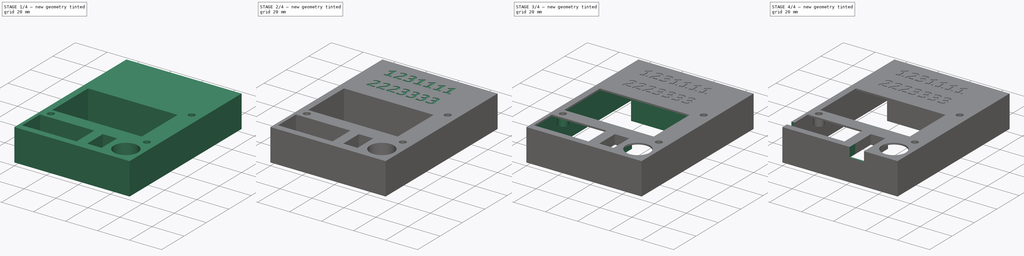
[diagram: build sequence overview — one tinted view per stage of 4, left to right]
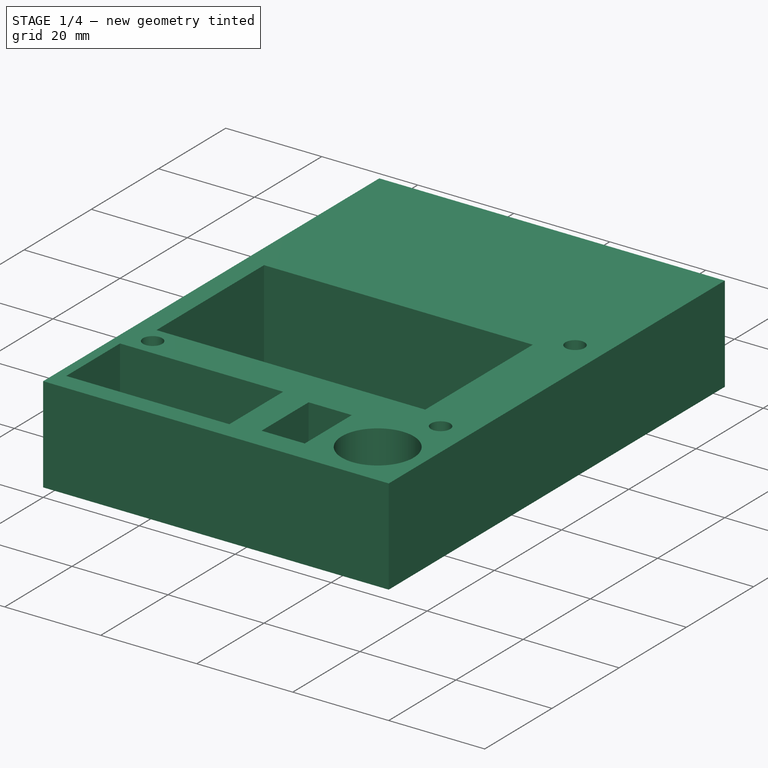
[diagram: stage 1 of 4 — iso view after this stage's code; geometry added in this stage tinted green]
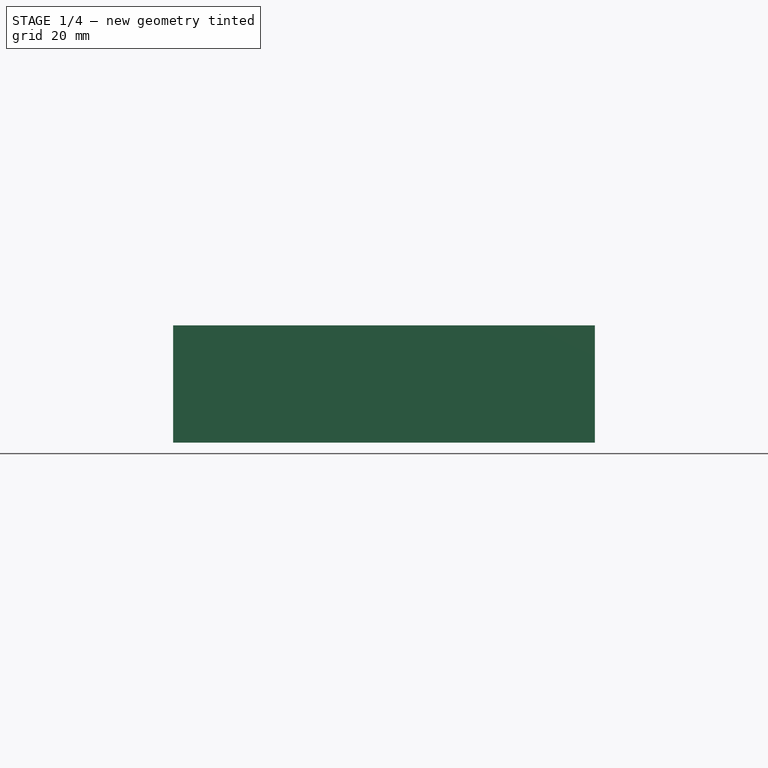
[diagram: stage 1 of 4 — front view after this stage's code; geometry added in this stage tinted green]
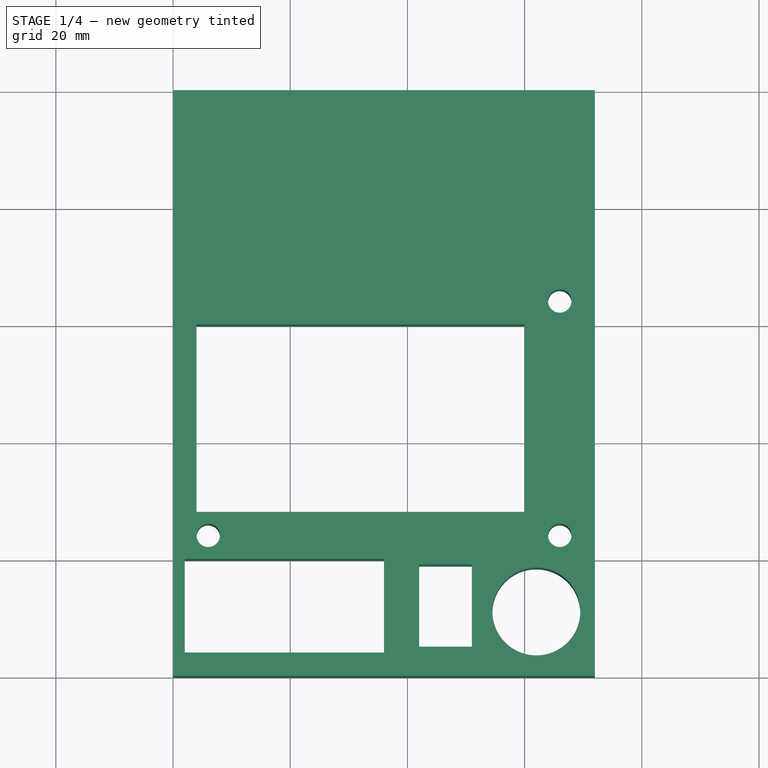
[diagram: stage 1 of 4 — top view after this stage's code; geometry added in this stage tinted green]
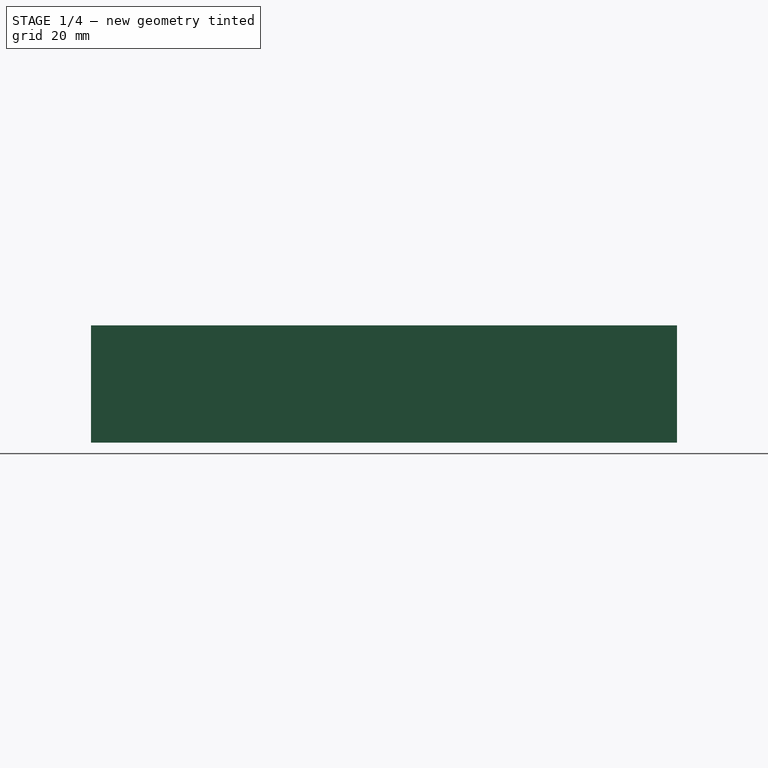
[diagram: stage 1 of 4 — right view after this stage's code; geometry added in this stage tinted green]
FCSTD DOCUMENT  (FreeCAD 0.18R16131 (Git))
Label: qs2015-t3
License: All rights reserved
LicenseURL: http://en.wikipedia.org/wiki/All_rights_reserved
objects: PartDesign::Pocket×8, Sketcher::SketchObject×7, Part::Part2DObjectPython×2, PartDesign::Pad×1, PartDesign::Body×1
note: 28 computed .brp shape members not serialized (recipe doc carries the construction recipe); baked Part::Feature solids carry a one-line shape summary decoded from their .brp

FEATURE [Sketcher::SketchObject] Sketch
  MapMode = 5
  Support = -> [XY_Plane]
  sketch-geometry (4):
    g0: LineSegment StartX=0 StartY=0 StartZ=0 EndX=72 EndY=0 EndZ=0
    g1: LineSegment StartX=72 StartY=0 StartZ=0 EndX=72 EndY=100 EndZ=0
    g2: LineSegment StartX=72 StartY=100 StartZ=0 EndX=0 EndY=100 EndZ=0
    g3: LineSegment StartX=0 StartY=100 StartZ=0 EndX=0 EndY=0 EndZ=0
  constraints (11):
    c: Coincident(g0,g1)
    c: Coincident(g1,g2)
    c: Coincident(g2,g3)
    c: Coincident(g3,g0)
    c: Horizontal(g0)
    c: Horizontal(g2)
    c: Vertical(g1)
    c: Vertical(g3)
    c: Coincident(g0,g-1)
    c: DistanceX(g0,g0) = 72
    c: DistanceY(g3,g3) = 100
FEATURE [PartDesign::Pad] Pad
  Length = 20
  Length2 = 100
  Profile = -> Sketch
  Type = 0
FEATURE [Sketcher::SketchObject] Sketch001
  ExternalGeometry = -> [Pad]
  MapMode = 5
  Placement = pos=(0,0,20) rot=(0,0,1;0rad)
  Support = -> [Pad]
  sketch-geometry (22):
    g0: LineSegment [constr] StartX=6 StartY=24 StartZ=0 EndX=66 EndY=24 EndZ=0
    g1: LineSegment [constr] StartX=66 StartY=24 StartZ=0 EndX=66 EndY=64 EndZ=0
    g2: LineSegment [constr] StartX=66 StartY=64 StartZ=0 EndX=6 EndY=64 EndZ=0
    g3: LineSegment [constr] StartX=6 StartY=64 StartZ=0 EndX=6 EndY=24 EndZ=0
    g4: LineSegment [constr] StartX=6 StartY=24 StartZ=0 EndX=0 EndY=24 EndZ=0
    g5: LineSegment [constr] StartX=66 StartY=24 StartZ=0 EndX=72 EndY=24 EndZ=0
    g6: Circle CenterX=66 CenterY=64 CenterZ=0 NormalX=0 NormalY=0 NormalZ=1 AngleXU=0 Radius=2
    g7: Circle CenterX=66 CenterY=24 CenterZ=0 NormalX=0 NormalY=0 NormalZ=1 AngleXU=0 Radius=2
    g8: Circle CenterX=6 CenterY=24 CenterZ=0 NormalX=0 NormalY=0 NormalZ=1 AngleXU=0 Radius=2
    g9: LineSegment StartX=2 StartY=4 StartZ=0 EndX=36 EndY=4 EndZ=0
    g10: LineSegment StartX=36 StartY=4 StartZ=0 EndX=36 EndY=20 EndZ=0
    g11: LineSegment StartX=36 StartY=20 StartZ=0 EndX=2 EndY=20 EndZ=0
    g12: LineSegment StartX=2 StartY=20 StartZ=0 EndX=2 EndY=4 EndZ=0
    g13: Circle CenterX=62 CenterY=11 CenterZ=0 NormalX=0 NormalY=0 NormalZ=1 AngleXU=0 Radius=7.5
    g14: LineSegment StartX=42 StartY=19 StartZ=0 EndX=51 EndY=19 EndZ=0
    g15: LineSegment StartX=51 StartY=19 StartZ=0 EndX=51 EndY=5 EndZ=0
    g16: LineSegment StartX=51 StartY=5 StartZ=0 EndX=42 EndY=5 EndZ=0
    g17: LineSegment StartX=42 StartY=5 StartZ=0 EndX=42 EndY=19 EndZ=0
    g18: LineSegment StartX=4 StartY=60 StartZ=0 EndX=60 EndY=60 EndZ=0
    g19: LineSegment StartX=60 StartY=60 StartZ=0 EndX=60 EndY=28 EndZ=0
    g20: LineSegment StartX=60 StartY=28 StartZ=0 EndX=4 EndY=28 EndZ=0
    g21: LineSegment StartX=4 StartY=28 StartZ=0 EndX=4 EndY=60 EndZ=0
  constraints (63):
    c: Coincident(g0,g1)
    c: Coincident(g1,g2)
    c: Coincident(g2,g3)
    c: Coincident(g3,g0)
    c: Horizontal(g0)
    c: Horizontal(g2)
    c: Vertical(g1)
    c: Vertical(g3)
    c: DistanceX(g0,g0) = 60
    c: DistanceY(g1,g1) = 40
    c: Coincident(g4,g0)
    c: Horizontal(g4)
    c: PointOnObject(g4,g-2)
    c: Coincident(g5,g0)
    c: Horizontal(g5)
    c: PointOnObject(g5,g-3)
    c: Equal(g4,g5)
    c: DistanceY(g-1,g0) = 24
    c: Coincident(g6,g1)
    c: Coincident(g7,g0)
    c: Coincident(g8,g0)
    c: Equal(g8,g7)
    c: Equal(g7,g6)
    c: Diameter(g6) = 4
    c: Coincident(g9,g10)
    c: Coincident(g10,g11)
    c: Coincident(g11,g12)
    c: Coincident(g12,g9)
    c: Horizontal(g9)
    c: Horizontal(g11)
    c: Vertical(g10)
    c: Vertical(g12)
    c: DistanceX(g9,g9) = 34
    c: DistanceY(g12,g12) = 16
    c: DistanceY(g11,g8) = 4
    c: Diameter(g13) = 15
    c: DistanceY(g13,g7) = 13
    c: DistanceX(g13,g7) = 4
    c: DistanceX(g-1,g9) = 2
    c: Coincident(g14,g15)
    c: Coincident(g15,g16)
    c: Coincident(g16,g17)
    c: Coincident(g17,g14)
    c: Horizontal(g14)
    c: Horizontal(g16)
    c: Vertical(g15)
    c: Vertical(g17)
    c: DistanceX(g16,g16) = 9
    c: DistanceY(g15,g15) = 14
    c: DistanceX(g14,g13) = 11
    c: DistanceY(g13,g14) = 8
    c: Coincident(g18,g19)
    c: Coincident(g19,g20)
    c: Coincident(g20,g21)
    c: Coincident(g21,g18)
    c: Horizontal(g18)
    c: Horizontal(g20)
    c: Vertical(g19)
    c: Vertical(g21)
    c: DistanceY(g19,g19) = 32
    c: DistanceX(g18,g18) = 56
    c: DistanceX(g-5,g18) = 4
    c: DistanceY(g18,g2) = 4
FEATURE [PartDesign::Pocket] Pocket  label="face"
  BaseFeature = -> Pad
  Length = 5
  Length2 = 100
  Profile = -> Sketch001
  Type = 1
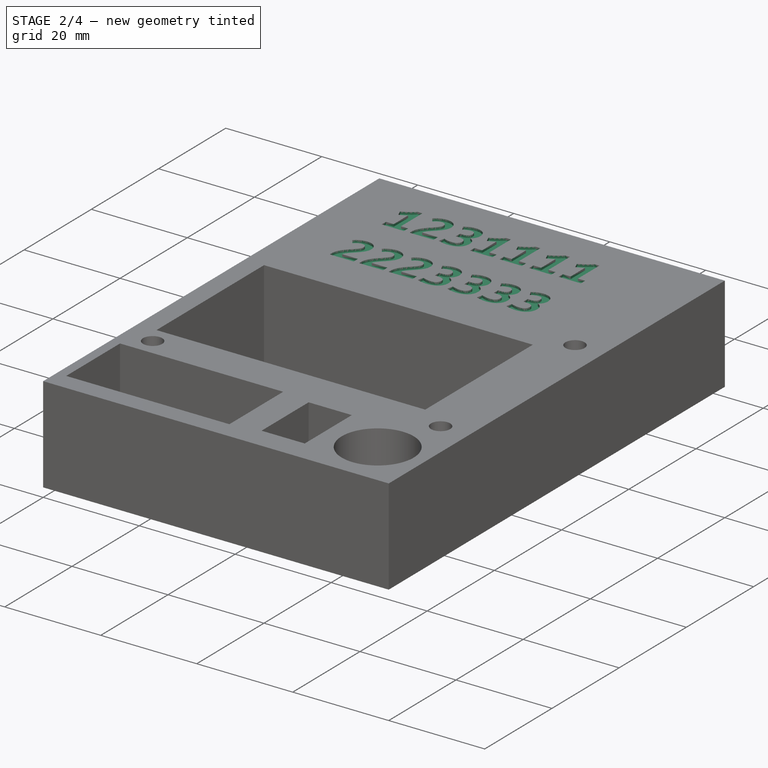
[diagram: stage 2 of 4 — iso view after this stage's code; geometry added in this stage tinted green]
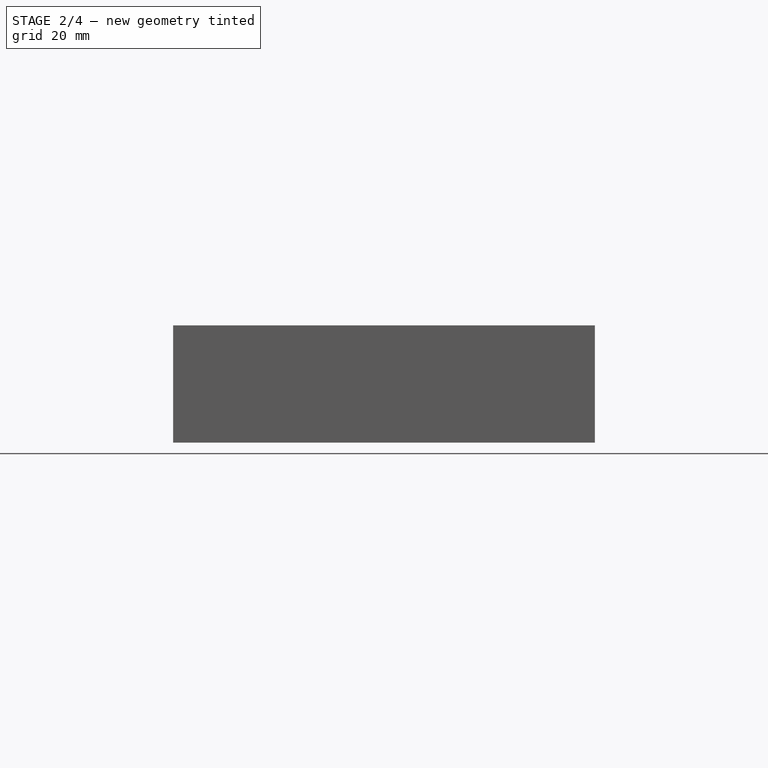
[diagram: stage 2 of 4 — front view after this stage's code; geometry added in this stage tinted green]
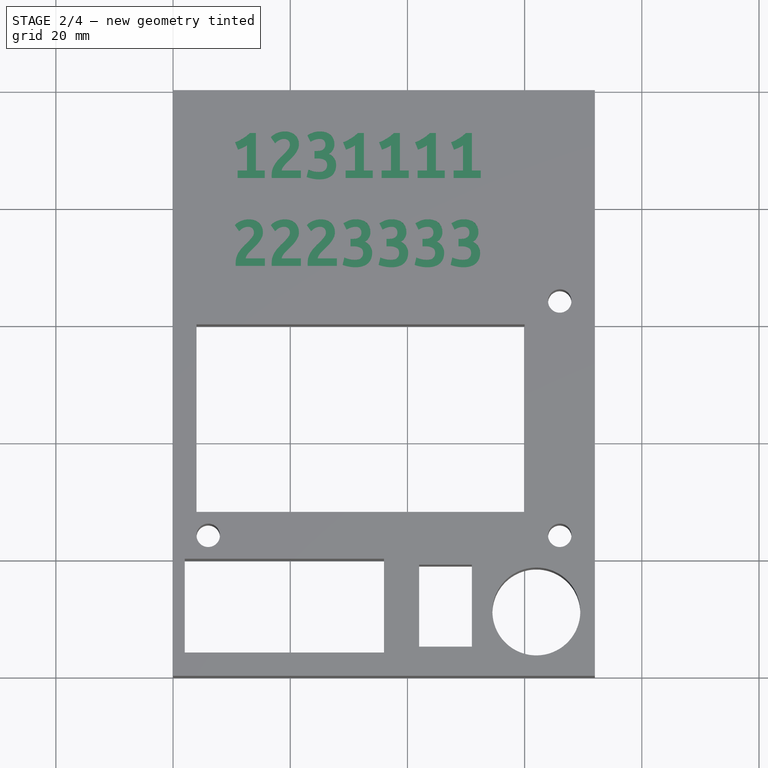
[diagram: stage 2 of 4 — top view after this stage's code; geometry added in this stage tinted green]
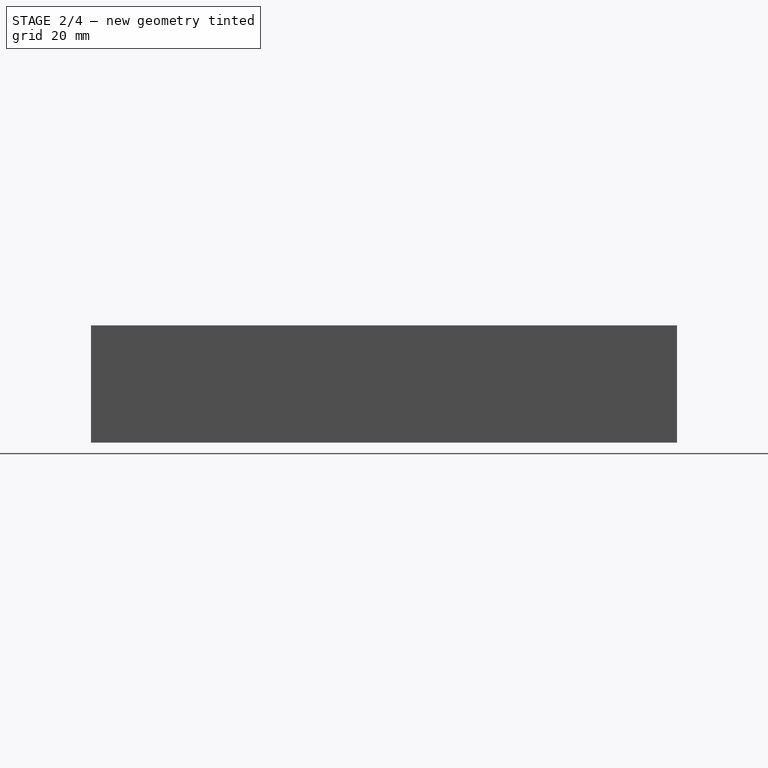
[diagram: stage 2 of 4 — right view after this stage's code; geometry added in this stage tinted green]
FEATURE [Part::Part2DObjectPython] ShapeString  # Draft 2D object (typed FeaturePython)
  FontFile = <path>
  Placement = pos=(10,85,20) rot=(0,0,1;0rad)
  Size = 4
  String = 1231111
  Support = -> [Pocket]
  Tracking = 0
FEATURE [PartDesign::Pocket] Pocket001  label="text1"
  BaseFeature = -> Pocket
  Length = 0.5
  Length2 = 100
  Profile = -> ShapeString
  Type = 0
FEATURE [Part::Part2DObjectPython] ShapeString001  # Draft 2D object (typed FeaturePython)
  FontFile = <path>
  Placement = pos=(10,70,20) rot=(0,0,1;0rad)
  Size = 4
  String = 2223333
  Support = -> [Pocket001]
  Tracking = 0
FEATURE [PartDesign::Pocket] Pocket002  label="text2"
  BaseFeature = -> Pocket001
  Length = 0.5
  Length2 = 100
  Profile = -> ShapeString001
  Type = 0
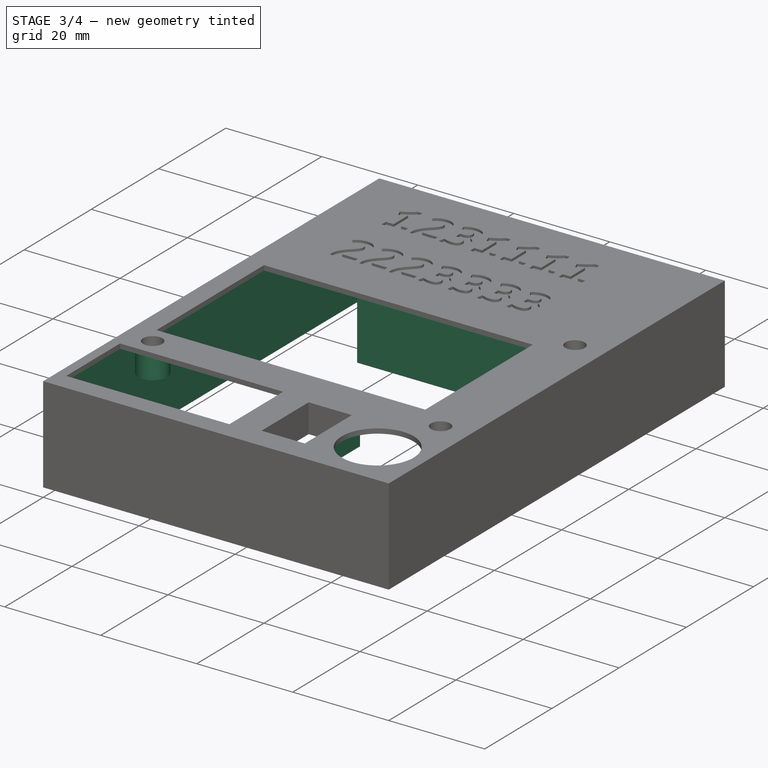
[diagram: stage 3 of 4 — iso view after this stage's code; geometry added in this stage tinted green]
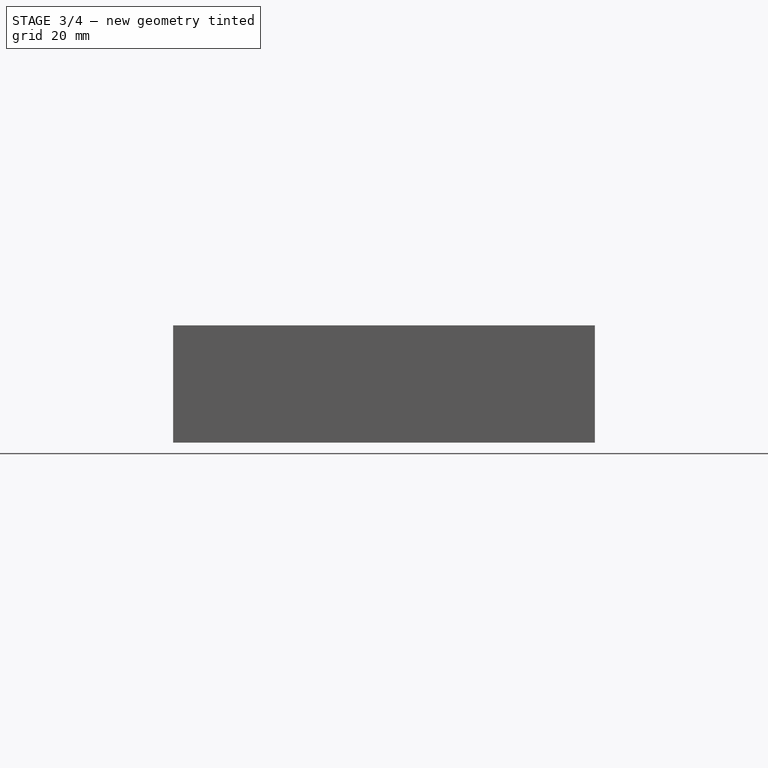
[diagram: stage 3 of 4 — front view after this stage's code; geometry added in this stage tinted green]
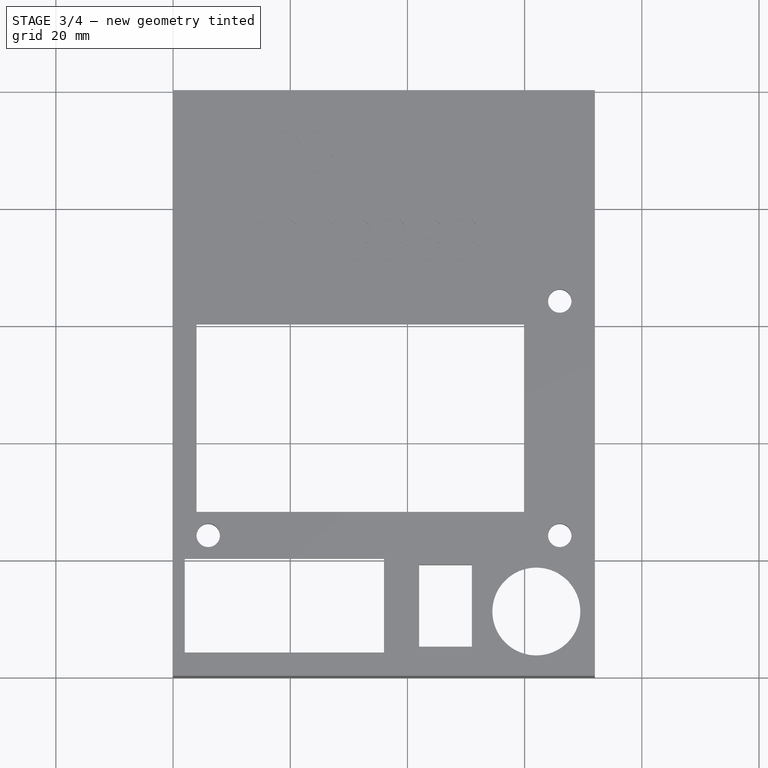
[diagram: stage 3 of 4 — top view after this stage's code; geometry added in this stage tinted green]
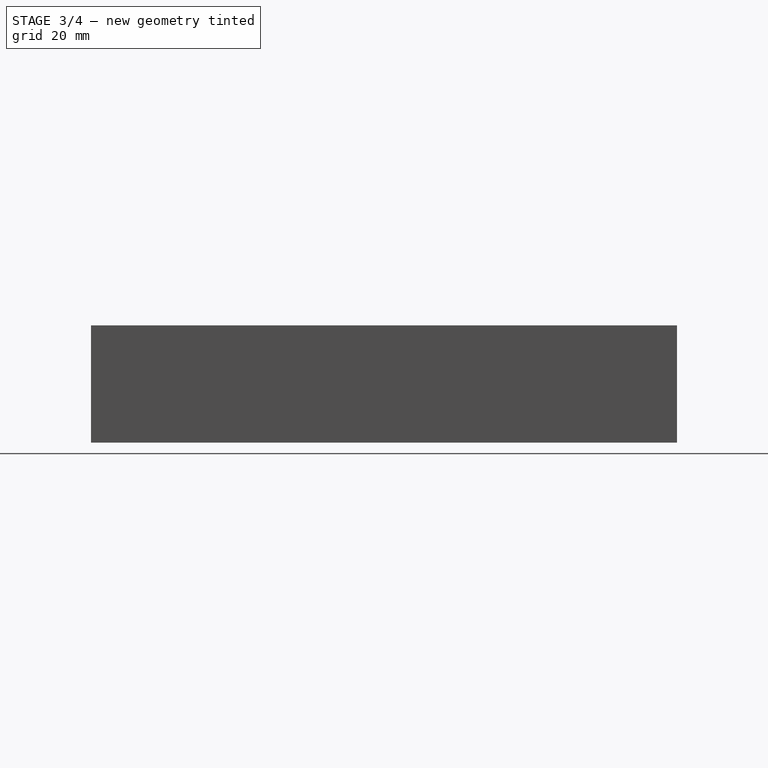
[diagram: stage 3 of 4 — right view after this stage's code; geometry added in this stage tinted green]
FEATURE [Sketcher::SketchObject] Sketch002
  ExternalGeometry = -> [Pocket002]
  MapMode = 5
  Placement = pos=(0,0,0) rot=(1,0,0;3.14159rad)
  Support = -> [Pocket002]
  sketch-geometry (17):
    g0: LineSegment StartX=1 StartY=-1 StartZ=0 EndX=71 EndY=-1 EndZ=0
    g1: LineSegment StartX=71 StartY=-1 StartZ=0 EndX=71 EndY=-72 EndZ=0
    g2: LineSegment [constr] StartX=71 StartY=-72 StartZ=0 EndX=1 EndY=-72 EndZ=0
    g3: LineSegment StartX=1 StartY=-72 StartZ=0 EndX=1 EndY=-1 EndZ=0
    g4: LineSegment [constr] StartX=1 StartY=-1 StartZ=0 EndX=0 EndY=-1 EndZ=0
    g5: LineSegment [constr] StartX=71 StartY=-1 StartZ=0 EndX=72 EndY=-1 EndZ=0
    g6: LineSegment [constr] StartX=71 StartY=-1 StartZ=0 EndX=71 EndY=0 EndZ=0
    g7: LineSegment [constr] StartX=1 StartY=-73 StartZ=0 EndX=71 EndY=-73 EndZ=0
    g8: LineSegment StartX=54 StartY=-73 StartZ=0 EndX=54 EndY=-99 EndZ=0
    g9: LineSegment StartX=54 StartY=-99 StartZ=0 EndX=1 EndY=-99 EndZ=0
    g10: LineSegment StartX=1 StartY=-99 StartZ=0 EndX=1 EndY=-73 EndZ=0
    g11: LineSegment StartX=1 StartY=-72 StartZ=0 EndX=1 EndY=-73 EndZ=0
    g12: LineSegment [constr] StartX=71 StartY=-72 StartZ=0 EndX=71 EndY=-73 EndZ=0
    g13: LineSegment [constr] StartX=1 StartY=-99 StartZ=0 EndX=1 EndY=-100 EndZ=0
    g14: LineSegment StartX=71 StartY=-72 StartZ=0 EndX=15 EndY=-72 EndZ=0
    g15: LineSegment StartX=54 StartY=-73 StartZ=0 EndX=15 EndY=-73 EndZ=0
    g16: LineSegment StartX=15 StartY=-72 StartZ=0 EndX=15 EndY=-73 EndZ=0
  constraints (49):
    c: Coincident(g0,g1)
    c: Coincident(g1,g2)
    c: Coincident(g2,g3)
    c: Coincident(g3,g0)
    c: Horizontal(g0)
    c: Horizontal(g2)
    c: Vertical(g1)
    c: Vertical(g3)
    c: Coincident(g4,g0)
    c: Horizontal(g4)
    c: Coincident(g5,g0)
    c: PointOnObject(g5,g-4)
    c: Horizontal(g5)
    c: Coincident(g6,g0)
    c: Vertical(g6)
    c: Coincident(g8,g9)
    c: Coincident(g9,g10)
    c: Coincident(g10,g7)
    c: Horizontal(g7)
    c: Horizontal(g9)
    c: Vertical(g8)
    c: Vertical(g10)
    c: Coincident(g11,g2)
    c: Coincident(g11,g7)
    c: Coincident(g12,g1)
    c: Coincident(g12,g7)
    c: Vertical(g12)
    c: Vertical(g11)
    c: Coincident(g13,g9)
    c: PointOnObject(g13,g-6)
    c: Vertical(g13)
    c: Equal(g13,g11)
    c: Equal(g11,g4)
    c: Equal(g4,g6)
    c: Equal(g6,g5)
    c: PointOnObject(g6,g-3)
    c: PointOnObject(g4,g-5)
    c: DistanceX(g5,g5) = 1
    c: DistanceY(g8,g8) = 26
    c: Coincident(g14,g1)
    c: PointOnObject(g14,g2)
    c: PointOnObject(g15,g7)
    c: Coincident(g16,g14)
    c: Coincident(g16,g15)
    c: Vertical(g16)
    c: DistanceX(g10,g15) = 14
    c: Coincident(g15,g8)
    c: PointOnObject(g8,g7)
    c: DistanceX(g8,g-6) = 18
FEATURE [PartDesign::Pocket] Pocket003  label="back1"
  BaseFeature = -> Pocket002
  Length = 14
  Length2 = 100
  Profile = -> Sketch002
  Type = 0
FEATURE [Sketcher::SketchObject] Sketch003
  ExternalGeometry = -> [Pocket003]
  MapMode = 5
  Placement = pos=(0,0,14) rot=(1,0,0;3.14159rad)
  Support = -> [Pocket003]
  sketch-geometry (4):
    g0: LineSegment StartX=1 StartY=-73 StartZ=0 EndX=54 EndY=-73 EndZ=0
    g1: LineSegment StartX=54 StartY=-73 StartZ=0 EndX=54 EndY=-99 EndZ=0
    g2: LineSegment StartX=54 StartY=-99 StartZ=0 EndX=1 EndY=-99 EndZ=0
    g3: LineSegment StartX=1 StartY=-99 StartZ=0 EndX=1 EndY=-73 EndZ=0
  constraints (10):
    c: Coincident(g0,g1)
    c: Coincident(g1,g2)
    c: Coincident(g2,g3)
    c: Coincident(g3,g0)
    c: Horizontal(g0)
    c: Horizontal(g2)
    c: Vertical(g1)
    c: Vertical(g3)
    c: Coincident(g0,g-6)
    c: Coincident(g1,g-5)
FEATURE [PartDesign::Pocket] Pocket004  label="battery"
  BaseFeature = -> Pocket003
  Length = 5
  Length2 = 100
  Profile = -> Sketch003
  Type = 0
FEATURE [Sketcher::SketchObject] Sketch004
  ExternalGeometry = -> [Pocket004]
  MapMode = 5
  Placement = pos=(0,0,14) rot=(1,0,0;3.14159rad)
  Support = -> [Pocket004]
  sketch-geometry (15):
    g0: LineSegment [constr] StartX=1 StartY=-1 StartZ=0 EndX=71 EndY=-1 EndZ=0
    g1: LineSegment StartX=71 StartY=-1 StartZ=0 EndX=71 EndY=-72 EndZ=0
    g2: LineSegment StartX=71 StartY=-72 StartZ=0 EndX=1 EndY=-72 EndZ=0
    g3: LineSegment StartX=1 StartY=-72 StartZ=0 EndX=1 EndY=-1 EndZ=0
    g4: LineSegment StartX=52 StartY=-1 StartZ=0 EndX=52 EndY=-20 EndZ=0
    g5: LineSegment StartX=52 StartY=-20 StartZ=0 EndX=41 EndY=-20 EndZ=0
    g6: LineSegment StartX=41 StartY=-20 StartZ=0 EndX=41 EndY=-1 EndZ=0
    g7: LineSegment [constr] StartX=42 StartY=-5 StartZ=0 EndX=41 EndY=-5 EndZ=0
    g8: LineSegment [constr] StartX=51 StartY=-19 StartZ=0 EndX=52 EndY=-19 EndZ=0
    g9: LineSegment [constr] StartX=51 StartY=-19 StartZ=0 EndX=51 EndY=-20 EndZ=0
    g10: Circle CenterX=6 CenterY=-24 CenterZ=0 NormalX=0 NormalY=0 NormalZ=1 AngleXU=0 Radius=3
    g11: Circle CenterX=66 CenterY=-24 CenterZ=0 NormalX=0 NormalY=0 NormalZ=1 AngleXU=0 Radius=3
    g12: Circle CenterX=66 CenterY=-64 CenterZ=0 NormalX=0 NormalY=0 NormalZ=1 AngleXU=0 Radius=3
    g13: LineSegment StartX=52 StartY=-1 StartZ=0 EndX=71 EndY=-1 EndZ=0
    g14: LineSegment StartX=1 StartY=-1 StartZ=0 EndX=41 EndY=-1 EndZ=0
  constraints (40):
    c: Coincident(g0,g1)
    c: Coincident(g1,g2)
    c: Coincident(g2,g3)
    c: Coincident(g3,g0)
    c: Horizontal(g0)
    c: Horizontal(g2)
    c: Vertical(g1)
    c: Vertical(g3)
    c: Coincident(g0,g-5)
    c: Coincident(g1,g-6)
    c: Coincident(g4,g5)
    c: Coincident(g5,g6)
    c: Horizontal(g5)
    c: Vertical(g4)
    c: Vertical(g6)
    c: PointOnObject(g7,g6)
    c: Horizontal(g7)
    c: Coincident(g8,g-10)
    c: PointOnObject(g8,g4)
    c: Horizontal(g8)
    c: Coincident(g9,g8)
    c: PointOnObject(g9,g5)
    c: Vertical(g9)
    c: Equal(g8,g9)
    c: DistanceX(g8,g8) = 1
    c: Coincident(g10,g-11)
    c: Coincident(g11,g-12)
    c: Coincident(g12,g-13)
    c: Equal(g12,g11)
    c: Equal(g11,g10)
    c: Diameter(g12) = 6
    c: Equal(g7,g8)
    c: Equal(g8,g9)
    c: PointOnObject(g6,g0)
    c: PointOnObject(g4,g0)
    c: Coincident(g13,g4)
    c: Coincident(g13,g1)
    c: Coincident(g14,g3)
    c: Coincident(g14,g6)
    c: Coincident(g7,g-8)
FEATURE [PartDesign::Pocket] Pocket005  label="back-support"
  BaseFeature = -> Pocket004
  Length = 5
  Length2 = 100
  Profile = -> Sketch004
  Type = 0
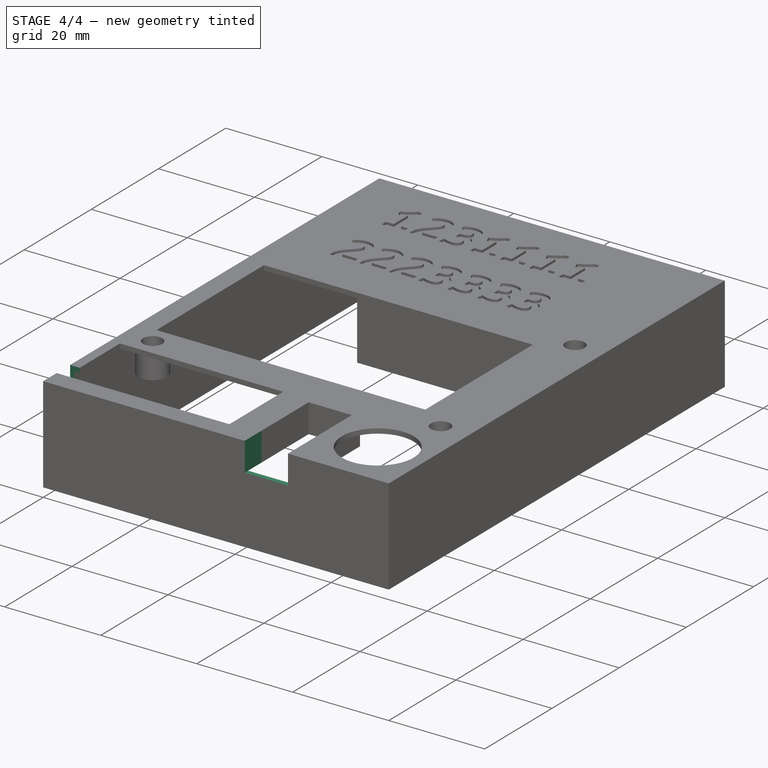
[diagram: stage 4 of 4 — iso view after this stage's code; geometry added in this stage tinted green]
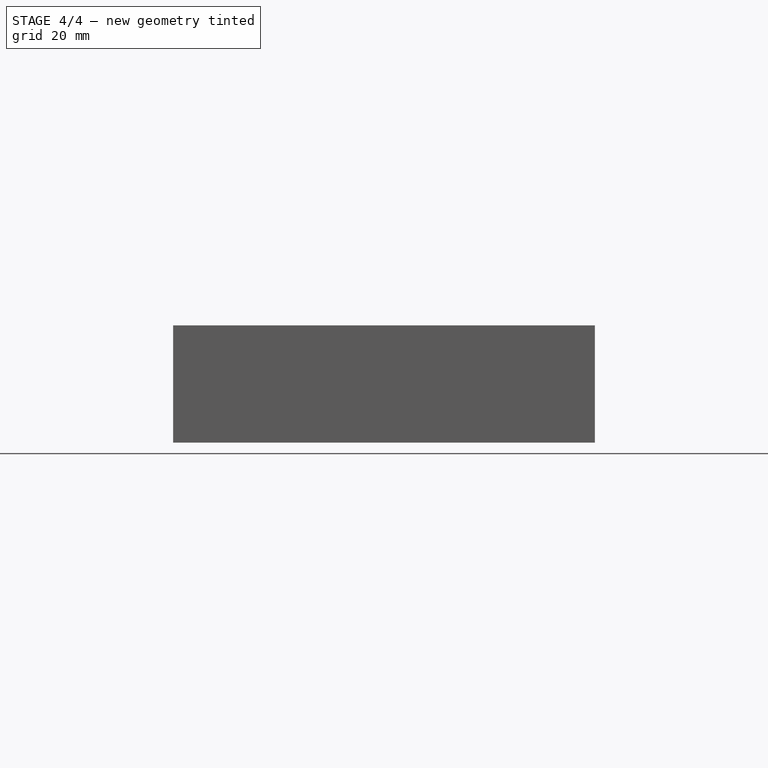
[diagram: stage 4 of 4 — front view after this stage's code; geometry added in this stage tinted green]
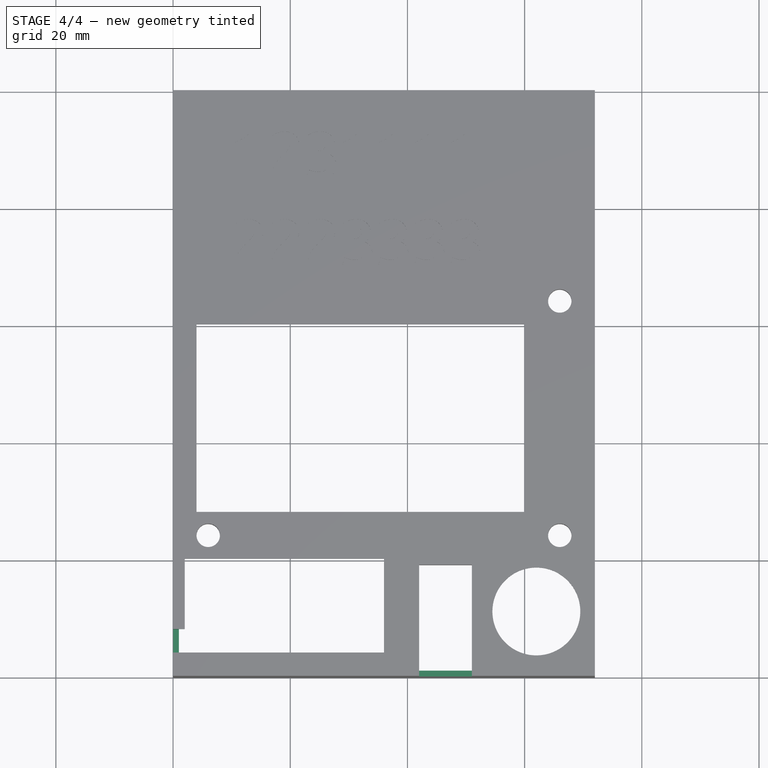
[diagram: stage 4 of 4 — top view after this stage's code; geometry added in this stage tinted green]
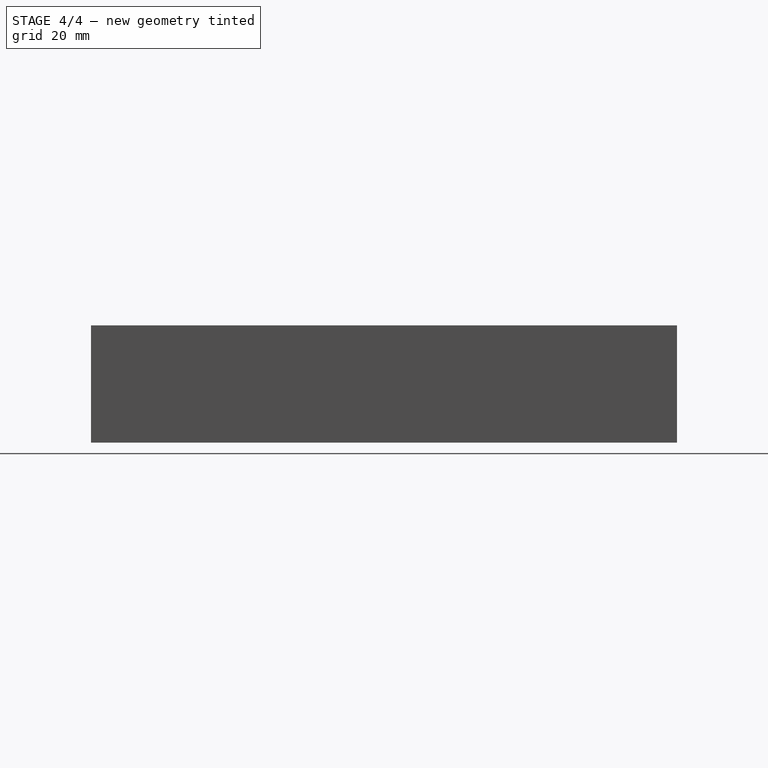
[diagram: stage 4 of 4 — right view after this stage's code; geometry added in this stage tinted green]
FEATURE [Sketcher::SketchObject] Sketch005
  ExternalGeometry = -> [Pocket005]
  MapMode = 5
  Placement = pos=(0,0,20) rot=(0,0,1;0rad)
  Support = -> [Pocket005]
  sketch-geometry (4):
    g0: LineSegment StartX=42 StartY=5 StartZ=0 EndX=51 EndY=5 EndZ=0
    g1: LineSegment StartX=51 StartY=5 StartZ=0 EndX=51 EndY=0 EndZ=0
    g2: LineSegment StartX=51 StartY=0 StartZ=0 EndX=42 EndY=0 EndZ=0
    g3: LineSegment StartX=42 StartY=0 StartZ=0 EndX=42 EndY=5 EndZ=0
  constraints (10):
    c: Coincident(g0,g1)
    c: Coincident(g1,g2)
    c: Coincident(g2,g3)
    c: Coincident(g3,g0)
    c: Horizontal(g2)
    c: Vertical(g1)
    c: Vertical(g3)
    c: PointOnObject(g2,g-4)
    c: Coincident(g-3,g0)
    c: Coincident(g0,g-3)
FEATURE [PartDesign::Pocket] Pocket006  label="smd"
  BaseFeature = -> Pocket005
  Length = 6
  Length2 = 100
  Profile = -> Sketch005
  Type = 0
FEATURE [Sketcher::SketchObject] Sketch006
  ExternalGeometry = -> [Pocket006]
  MapMode = 5
  Placement = pos=(0,0,20) rot=(0,0,1;0rad)
  Support = -> [Pocket006]
  sketch-geometry (4):
    g0: LineSegment StartX=2 StartY=4 StartZ=0 EndX=0 EndY=4 EndZ=0
    g1: LineSegment StartX=0 StartY=4 StartZ=0 EndX=0 EndY=8 EndZ=0
    g2: LineSegment StartX=0 StartY=8 StartZ=0 EndX=2 EndY=8 EndZ=0
    g3: LineSegment StartX=2 StartY=8 StartZ=0 EndX=2 EndY=4 EndZ=0
  constraints (11):
    c: Coincident(g0,g1)
    c: Coincident(g1,g2)
    c: Coincident(g2,g3)
    c: Coincident(g3,g0)
    c: Horizontal(g0)
    c: Horizontal(g2)
    c: Vertical(g1)
    c: Vertical(g3)
    c: Coincident(g0,g-3)
    c: PointOnObject(g1,g-2)
    c: DistanceY(g1,g1) = 4
FEATURE [PartDesign::Pocket] Pocket007  label="socket"
  BaseFeature = -> Pocket006
  Length = 3
  Length2 = 100
  Profile = -> Sketch006
  Type = 0
FEATURE [PartDesign::Body] Body
  Group = -> [Sketch,Pad,Sketch001,Pocket,ShapeString,Pocket001,ShapeString001,Pocket002,Sketch002,Pocket003,Sketch003,Pocket004,Sketch004,Pocket005,Sketch005,Pocket006,Sketch006,Pocket007]
  Origin = -> Origin
  Tip = -> Pocket007
note: 2 file-system paths scrubbed to <path> (originals preserved in the JSON sidecar)
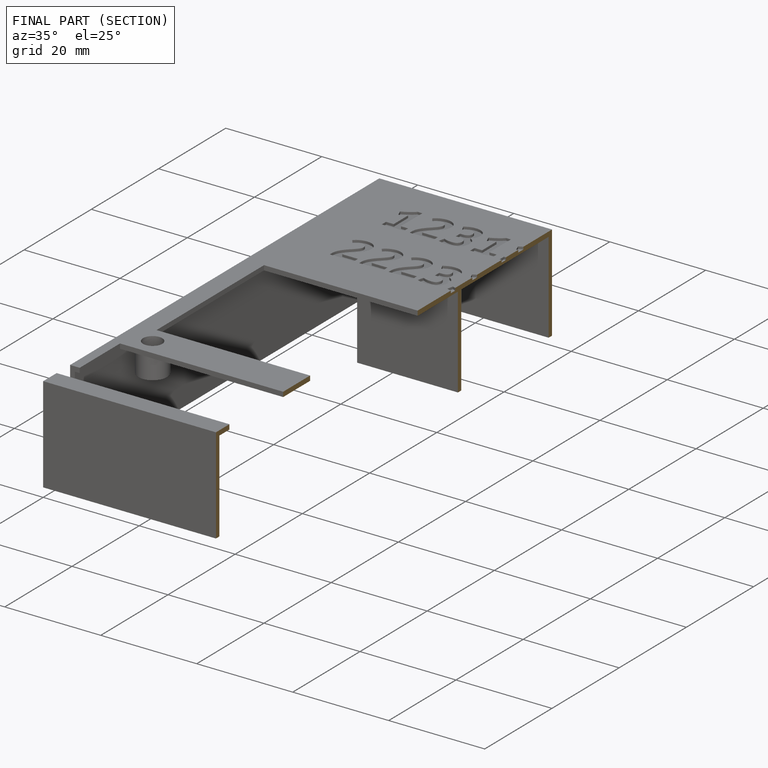
[diagram: finished part — half-section view (interior)]
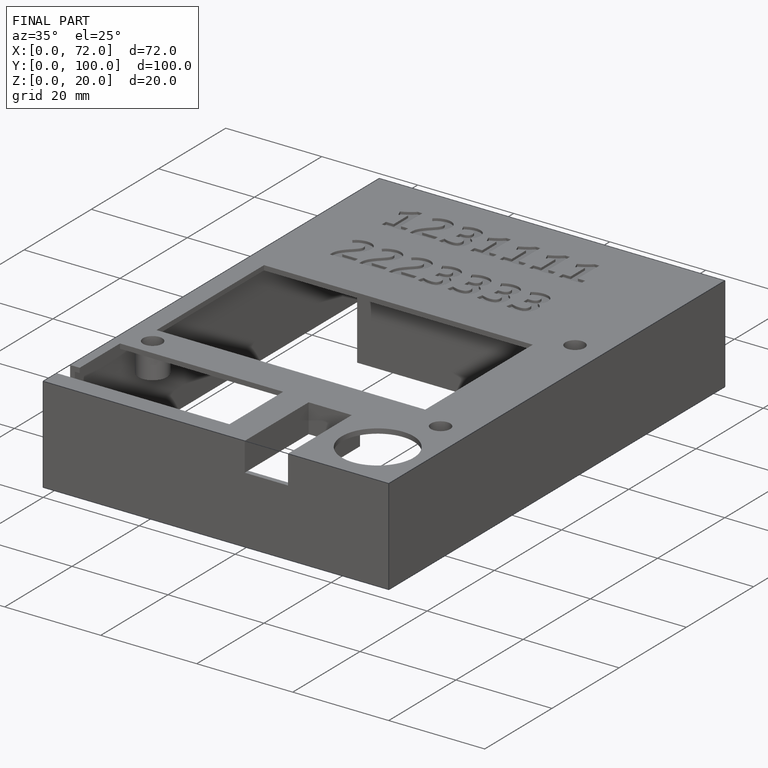
[diagram: finished part — iso view with bounding-box wireframe]
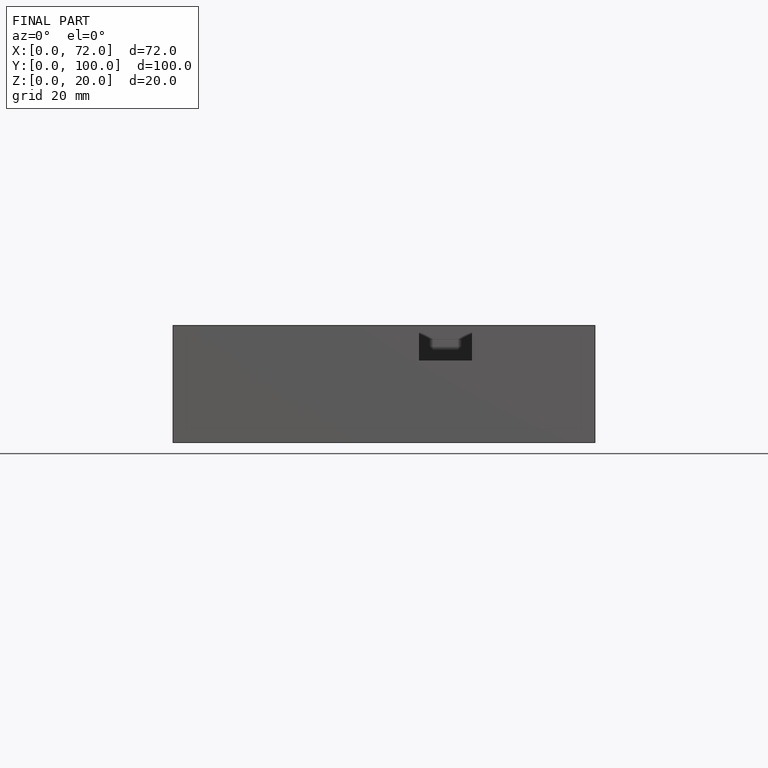
[diagram: finished part — front view with bounding-box wireframe]
